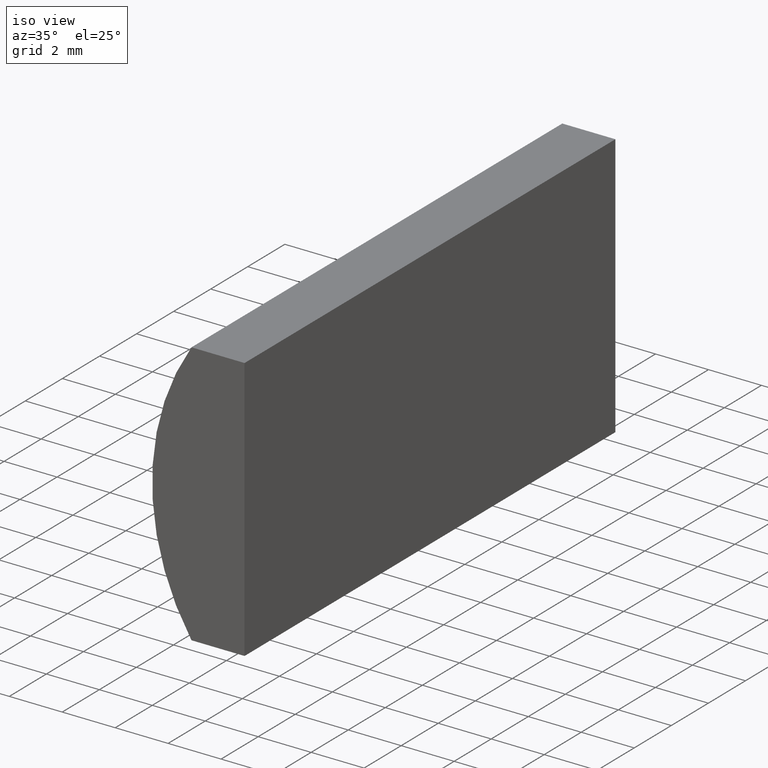
[diagram: clean part render]
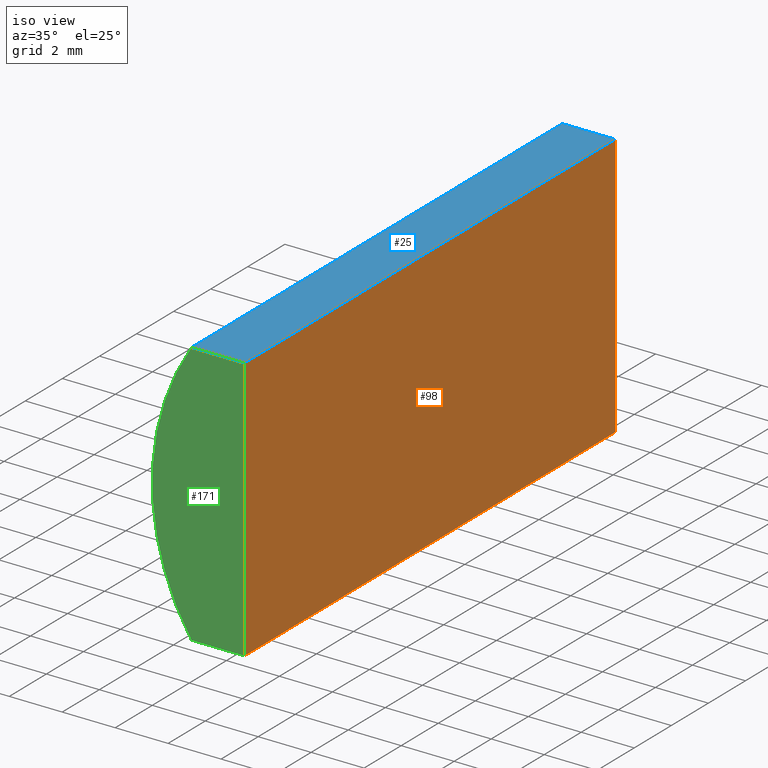
[diagram: same view with three faces highlighted in distinct colors, each labeled with its STEP entity id]
A machine part, iso view with three faces highlighted in distinct colors.
Their STEP definitions:

[orange] entity #98 — the highlighted planar face has unit normal (-1, 0, 0).
#9 = VERTEX_POINT ( 'NONE', #39 ) ;
#13 = ORIENTED_EDGE ( 'NONE', *, *, #50, .F. ) ;
#16 = DIRECTION ( 'NONE',  ( -1.000000000000000000, 0.0000000000000000000, 3.035766082959411900E-016 ) ) ;
#17 = DIRECTION ( 'NONE',  ( -3.035766082959411900E-016, -0.0000000000000000000, -1.000000000000000000 ) ) ;
#18 = EDGE_CURVE ( 'NONE', #9, #57, #125, .T. ) ;
#23 = CARTESIAN_POINT ( 'NONE',  ( -1.314795665148736900, 20.00000000000000000, -5.000000000000001800 ) ) ;
#27 = AXIS2_PLACEMENT_3D ( 'NONE', #179, #16, #106 ) ;
#29 = DIRECTION ( 'NONE',  ( -3.035766082959411900E-016, -0.0000000000000000000, -1.000000000000000000 ) ) ;
#30 = EDGE_LOOP ( 'NONE', ( #115, #13, #189, #68 ) ) ;
#35 = CARTESIAN_POINT ( 'NONE',  ( -1.314795665148736900, 20.00000000000000000, -5.000000000000001800 ) ) ;
#38 = EDGE_CURVE ( 'NONE', #9, #124, #163, .T. ) ;
#39 = CARTESIAN_POINT ( 'NONE',  ( -1.314795665148734000, 20.00000000000000000, 5.000000000000000000 ) ) ;
#44 = VECTOR ( 'NONE', #56, 1000.000000000000000 ) ;
#47 = CARTESIAN_POINT ( 'NONE',  ( -1.314795665148734000, 0.0000000000000000000, 5.000000000000000000 ) ) ;
#50 = EDGE_CURVE ( 'NONE', #57, #172, #77, .T. ) ;
#56 = DIRECTION ( 'NONE',  ( -0.0000000000000000000, -1.000000000000000000, -0.0000000000000000000 ) ) ;
#57 = VERTEX_POINT ( 'NONE', #35 ) ;
#58 = EDGE_CURVE ( 'NONE', #124, #172, #117, .T. ) ;
#64 = CARTESIAN_POINT ( 'NONE',  ( -1.314795665148734000, 20.00000000000000000, 5.000000000000000000 ) ) ;
#68 = ORIENTED_EDGE ( 'NONE', *, *, #38, .T. ) ;
#73 = CARTESIAN_POINT ( 'NONE',  ( -1.314795665148736900, 0.0000000000000000000, -5.000000000000001800 ) ) ;
#75 = VECTOR ( 'NONE', #17, 1000.000000000000000 ) ;
#77 = LINE ( 'NONE', #92, #199 ) ;
#92 = CARTESIAN_POINT ( 'NONE',  ( -1.314795665148736900, 20.00000000000000000, -5.000000000000001800 ) ) ;
#95 = VECTOR ( 'NONE', #29, 1000.000000000000000 ) ;
#98 = ADVANCED_FACE ( 'NONE', ( #157 ), #132, .F. ) ;
#105 = CARTESIAN_POINT ( 'NONE',  ( -1.314795665148736900, 0.0000000000000000000, -5.000000000000001800 ) ) ;
#106 = DIRECTION ( 'NONE',  ( 3.035766082959411900E-016, 0.0000000000000000000, 1.000000000000000000 ) ) ;
#115 = ORIENTED_EDGE ( 'NONE', *, *, #58, .T. ) ;
#117 = LINE ( 'NONE', #73, #75 ) ;
#124 = VERTEX_POINT ( 'NONE', #47 ) ;
#125 = LINE ( 'NONE', #23, #95 ) ;
#132 = PLANE ( 'NONE',  #27 ) ;
#157 = FACE_OUTER_BOUND ( 'NONE', #30, .T. ) ;
#163 = LINE ( 'NONE', #64, #44 ) ;
#172 = VERTEX_POINT ( 'NONE', #105 ) ;
#179 = CARTESIAN_POINT ( 'NONE',  ( -1.314795665148736900, 20.00000000000000000, -5.000000000000001800 ) ) ;
#189 = ORIENTED_EDGE ( 'NONE', *, *, #18, .F. ) ;
#199 = VECTOR ( 'NONE', #202, 1000.000000000000000 ) ;
#202 = DIRECTION ( 'NONE',  ( -0.0000000000000000000, -1.000000000000000000, -0.0000000000000000000 ) ) ;

[blue] entity #25 — the highlighted planar face has unit normal (0, 0, -1).
#8 = EDGE_CURVE ( 'NONE', #167, #9, #36, .T. ) ;
#9 = VERTEX_POINT ( 'NONE', #39 ) ;
#12 = DIRECTION ( 'NONE',  ( -0.0000000000000000000, -1.000000000000000000, -0.0000000000000000000 ) ) ;
#14 = CARTESIAN_POINT ( 'NONE',  ( -3.319794036484067700, 20.00000000000000000, 5.000000000000000000 ) ) ;
#15 = EDGE_CURVE ( 'NONE', #167, #144, #63, .T. ) ;
#21 = CARTESIAN_POINT ( 'NONE',  ( -3.319794036484067700, 20.00000000000000000, 5.000000000000000000 ) ) ;
#25 = ADVANCED_FACE ( 'NONE', ( #78 ), #166, .F. ) ;
#31 = CARTESIAN_POINT ( 'NONE',  ( -3.319794036484067700, 0.0000000000000000000, 5.000000000000000000 ) ) ;
#33 = ORIENTED_EDGE ( 'NONE', *, *, #38, .F. ) ;
#36 = LINE ( 'NONE', #196, #129 ) ;
#38 = EDGE_CURVE ( 'NONE', #9, #124, #163, .T. ) ;
#39 = CARTESIAN_POINT ( 'NONE',  ( -1.314795665148734000, 20.00000000000000000, 5.000000000000000000 ) ) ;
#44 = VECTOR ( 'NONE', #56, 1000.000000000000000 ) ;
#47 = CARTESIAN_POINT ( 'NONE',  ( -1.314795665148734000, 0.0000000000000000000, 5.000000000000000000 ) ) ;
#56 = DIRECTION ( 'NONE',  ( -0.0000000000000000000, -1.000000000000000000, -0.0000000000000000000 ) ) ;
#63 = LINE ( 'NONE', #123, #118 ) ;
#64 = CARTESIAN_POINT ( 'NONE',  ( -1.314795665148734000, 20.00000000000000000, 5.000000000000000000 ) ) ;
#78 = FACE_OUTER_BOUND ( 'NONE', #156, .T. ) ;
#86 = DIRECTION ( 'NONE',  ( 1.000000000000000000, 0.0000000000000000000, 0.0000000000000000000 ) ) ;
#88 = EDGE_CURVE ( 'NONE', #144, #124, #201, .T. ) ;
#90 = DIRECTION ( 'NONE',  ( 0.0000000000000000000, 0.0000000000000000000, -1.000000000000000000 ) ) ;
#103 = ORIENTED_EDGE ( 'NONE', *, *, #8, .F. ) ;
#111 = AXIS2_PLACEMENT_3D ( 'NONE', #21, #90, #120 ) ;
#118 = VECTOR ( 'NONE', #12, 1000.000000000000000 ) ;
#120 = DIRECTION ( 'NONE',  ( -1.000000000000000000, 0.0000000000000000000, -0.0000000000000000000 ) ) ;
#122 = DIRECTION ( 'NONE',  ( 1.000000000000000000, 0.0000000000000000000, 0.0000000000000000000 ) ) ;
#123 = CARTESIAN_POINT ( 'NONE',  ( -3.319794036484067700, 20.00000000000000000, 5.000000000000000000 ) ) ;
#124 = VERTEX_POINT ( 'NONE', #47 ) ;
#129 = VECTOR ( 'NONE', #122, 1000.000000000000000 ) ;
#144 = VERTEX_POINT ( 'NONE', #31 ) ;
#149 = CARTESIAN_POINT ( 'NONE',  ( -3.319794036484067700, 0.0000000000000000000, 5.000000000000000000 ) ) ;
#156 = EDGE_LOOP ( 'NONE', ( #187, #33, #103, #200 ) ) ;
#163 = LINE ( 'NONE', #64, #44 ) ;
#166 = PLANE ( 'NONE',  #111 ) ;
#167 = VERTEX_POINT ( 'NONE', #14 ) ;
#178 = VECTOR ( 'NONE', #86, 1000.000000000000000 ) ;
#187 = ORIENTED_EDGE ( 'NONE', *, *, #88, .T. ) ;
#196 = CARTESIAN_POINT ( 'NONE',  ( -3.319794036484067700, 20.00000000000000000, 5.000000000000000000 ) ) ;
#200 = ORIENTED_EDGE ( 'NONE', *, *, #15, .T. ) ;
#201 = LINE ( 'NONE', #149, #178 ) ;

[green] entity #171 — the highlighted planar face has unit normal (0, 1, 0).
#1 = CARTESIAN_POINT ( 'NONE',  ( -3.319794036484067700, 0.0000000000000000000, -5.000000000000000000 ) ) ;
#2 = LINE ( 'NONE', #1, #130 ) ;
#17 = DIRECTION ( 'NONE',  ( -3.035766082959411900E-016, -0.0000000000000000000, -1.000000000000000000 ) ) ;
#31 = CARTESIAN_POINT ( 'NONE',  ( -3.319794036484067700, 0.0000000000000000000, 5.000000000000000000 ) ) ;
#45 = CARTESIAN_POINT ( 'NONE',  ( 4.355204334851265500, 0.0000000000000000000, 4.286263797015675000E-017 ) ) ;
#47 = CARTESIAN_POINT ( 'NONE',  ( -1.314795665148734000, 0.0000000000000000000, 5.000000000000000000 ) ) ;
#48 = FACE_OUTER_BOUND ( 'NONE', #143, .T. ) ;
#58 = EDGE_CURVE ( 'NONE', #124, #172, #117, .T. ) ;
#59 = ORIENTED_EDGE ( 'NONE', *, *, #109, .F. ) ;
#65 = VERTEX_POINT ( 'NONE', #164 ) ;
#73 = CARTESIAN_POINT ( 'NONE',  ( -1.314795665148736900, 0.0000000000000000000, -5.000000000000001800 ) ) ;
#75 = VECTOR ( 'NONE', #17, 1000.000000000000000 ) ;
#76 = AXIS2_PLACEMENT_3D ( 'NONE', #45, #192, #160 ) ;
#80 = CIRCLE ( 'NONE', #76, 9.160000000000001900 ) ;
#86 = DIRECTION ( 'NONE',  ( 1.000000000000000000, 0.0000000000000000000, 0.0000000000000000000 ) ) ;
#88 = EDGE_CURVE ( 'NONE', #144, #124, #201, .T. ) ;
#104 = DIRECTION ( 'NONE',  ( 0.0000000000000000000, -0.0000000000000000000, 1.000000000000000000 ) ) ;
#105 = CARTESIAN_POINT ( 'NONE',  ( -1.314795665148736900, 0.0000000000000000000, -5.000000000000001800 ) ) ;
#109 = EDGE_CURVE ( 'NONE', #172, #65, #2, .T. ) ;
#113 = ORIENTED_EDGE ( 'NONE', *, *, #58, .F. ) ;
#117 = LINE ( 'NONE', #73, #75 ) ;
#124 = VERTEX_POINT ( 'NONE', #47 ) ;
#126 = EDGE_CURVE ( 'NONE', #65, #144, #80, .T. ) ;
#127 = ORIENTED_EDGE ( 'NONE', *, *, #126, .F. ) ;
#130 = VECTOR ( 'NONE', #147, 1000.000000000000000 ) ;
#135 = AXIS2_PLACEMENT_3D ( 'NONE', #176, #190, #104 ) ;
#143 = EDGE_LOOP ( 'NONE', ( #127, #59, #113, #159 ) ) ;
#144 = VERTEX_POINT ( 'NONE', #31 ) ;
#147 = DIRECTION ( 'NONE',  ( -1.000000000000000000, -0.0000000000000000000, 8.651994439384406700E-016 ) ) ;
#149 = CARTESIAN_POINT ( 'NONE',  ( -3.319794036484067700, 0.0000000000000000000, 5.000000000000000000 ) ) ;
#159 = ORIENTED_EDGE ( 'NONE', *, *, #88, .F. ) ;
#160 = DIRECTION ( 'NONE',  ( 0.0000000000000000000, 0.0000000000000000000, 1.000000000000000000 ) ) ;
#164 = CARTESIAN_POINT ( 'NONE',  ( -3.319794036484067700, 0.0000000000000000000, -5.000000000000000000 ) ) ;
#171 = ADVANCED_FACE ( 'NONE', ( #48 ), #175, .F. ) ;
#172 = VERTEX_POINT ( 'NONE', #105 ) ;
#175 = PLANE ( 'NONE',  #135 ) ;
#176 = CARTESIAN_POINT ( 'NONE',  ( 4.355204334851265500, 0.0000000000000000000, 4.286263797015675000E-017 ) ) ;
#178 = VECTOR ( 'NONE', #86, 1000.000000000000000 ) ;
#190 = DIRECTION ( 'NONE',  ( 0.0000000000000000000, 1.000000000000000000, 0.0000000000000000000 ) ) ;
#192 = DIRECTION ( 'NONE',  ( 0.0000000000000000000, 1.000000000000000000, 0.0000000000000000000 ) ) ;
#201 = LINE ( 'NONE', #149, #178 ) ;